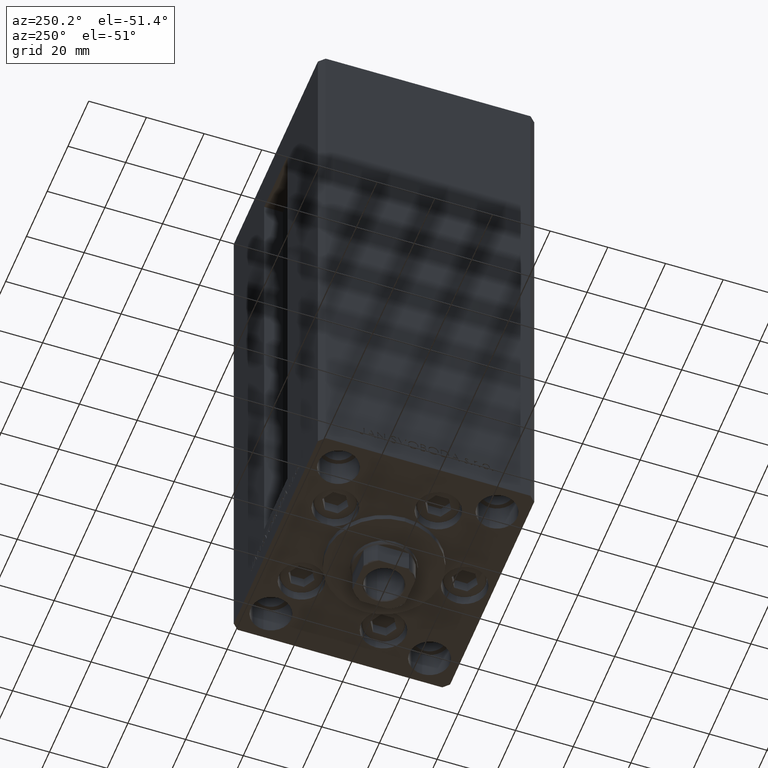
[diagram: clean part render]
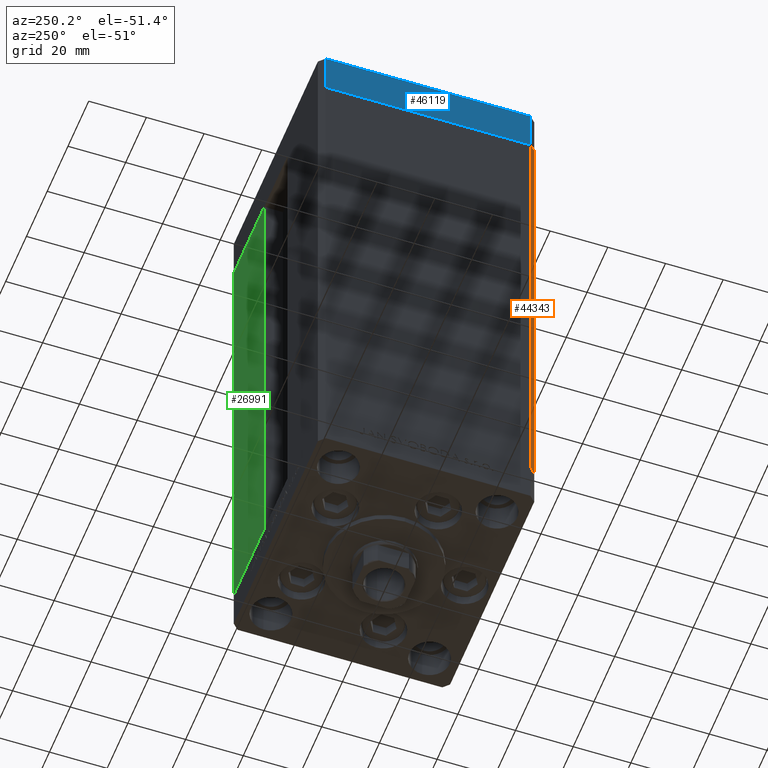
[diagram: same view with three faces highlighted in distinct colors, each labeled with its STEP entity id]
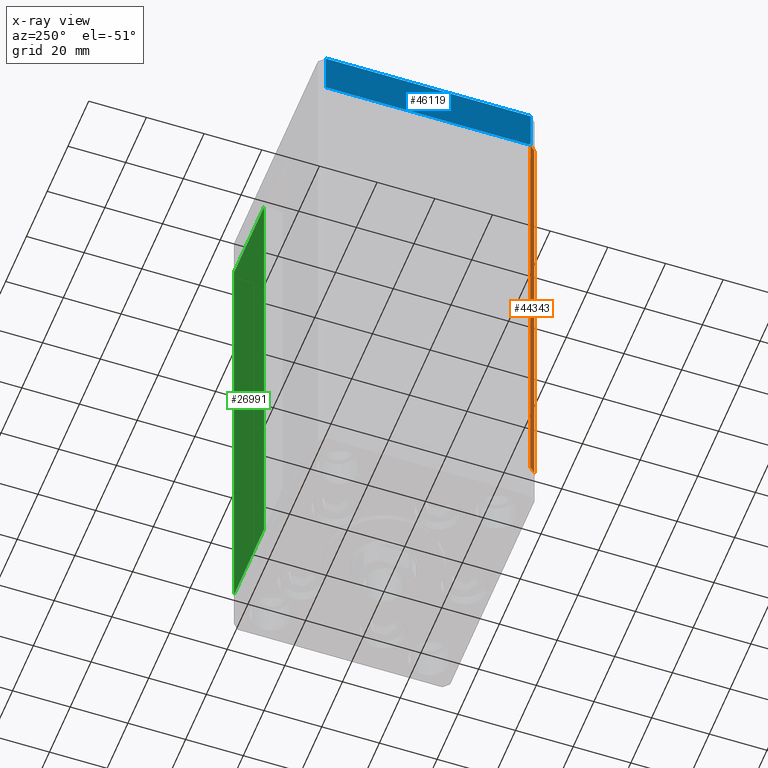
[diagram: x-ray of the same camera — body ghosted, the three highlighted faces saturated]
A machine part, auxiliary view with three faces highlighted in distinct colors.
The next image is the same camera in x-ray (body ghosted, the three faces saturated) — at least one of them is partly hidden behind the body in this view.
Their STEP definitions:

[orange] entity #44343 — the highlighted planar face has unit normal (0.7071, 0.7071, 0).
#100 = DIRECTION ( 'NONE',  ( 0.7071067811865475727, 0.7071067811865475727, -0.000000000000000000 ) ) ;
#1778 = CARTESIAN_POINT ( 'NONE',  ( -42.49999999999998579, -35.50000000000000711, 168.5000000000000000 ) ) ;
#2165 = VERTEX_POINT ( 'NONE', #17840 ) ;
#2804 = CARTESIAN_POINT ( 'NONE',  ( -42.49999999999998579, -35.50000000000000711, 168.5000000000000000 ) ) ;
#3328 = FACE_OUTER_BOUND ( 'NONE', #6690, .T. ) ;
#3898 = VERTEX_POINT ( 'NONE', #2804 ) ;
#6690 = EDGE_LOOP ( 'NONE', ( #44557, #21536, #24591, #28773 ) ) ;
#9269 = DIRECTION ( 'NONE',  ( -0.000000000000000000, -0.000000000000000000, -1.000000000000000000 ) ) ;
#9904 = VERTEX_POINT ( 'NONE', #37448 ) ;
#11997 = LINE ( 'NONE', #23684, #42934 ) ;
#12565 = DIRECTION ( 'NONE',  ( -0.000000000000000000, -0.000000000000000000, -1.000000000000000000 ) ) ;
#15575 = LINE ( 'NONE', #27264, #33162 ) ;
#15872 = VECTOR ( 'NONE', #45865, 1000.000000000000114 ) ;
#16441 = CARTESIAN_POINT ( 'NONE',  ( -42.49999999999998579, -35.50000000000000711, 168.5000000000000000 ) ) ;
#17292 = EDGE_CURVE ( 'NONE', #3898, #26285, #27166, .T. ) ;
#17840 = CARTESIAN_POINT ( 'NONE',  ( -40.49999999999998579, -37.50000000000000711, 0.000000000000000000 ) ) ;
#18531 = CARTESIAN_POINT ( 'NONE',  ( -42.49999999999998579, -35.50000000000000711, 168.5000000000000000 ) ) ;
#21536 = ORIENTED_EDGE ( 'NONE', *, *, #44007, .F. ) ;
#22774 = DIRECTION ( 'NONE',  ( -0.7071067811865474617, 0.7071067811865474617, 0.000000000000000000 ) ) ;
#23684 = CARTESIAN_POINT ( 'NONE',  ( -42.49999999999998579, -35.50000000000000711, 0.000000000000000000 ) ) ;
#24591 = ORIENTED_EDGE ( 'NONE', *, *, #17292, .F. ) ;
#26285 = VERTEX_POINT ( 'NONE', #28992 ) ;
#27166 = LINE ( 'NONE', #16441, #15872 ) ;
#27264 = CARTESIAN_POINT ( 'NONE',  ( -40.49999999999998579, -37.50000000000000711, 168.5000000000000000 ) ) ;
#27617 = AXIS2_PLACEMENT_3D ( 'NONE', #18531, #100, #22774 ) ;
#28773 = ORIENTED_EDGE ( 'NONE', *, *, #29819, .T. ) ;
#28992 = CARTESIAN_POINT ( 'NONE',  ( -40.49999999999998579, -37.50000000000000711, 168.5000000000000000 ) ) ;
#29819 = EDGE_CURVE ( 'NONE', #3898, #9904, #43399, .T. ) ;
#33162 = VECTOR ( 'NONE', #12565, 1000.000000000000000 ) ;
#33642 = VECTOR ( 'NONE', #9269, 1000.000000000000000 ) ;
#37448 = CARTESIAN_POINT ( 'NONE',  ( -42.49999999999998579, -35.50000000000000711, 0.000000000000000000 ) ) ;
#37731 = PLANE ( 'NONE',  #27617 ) ;
#42934 = VECTOR ( 'NONE', #45371, 1000.000000000000114 ) ;
#43399 = LINE ( 'NONE', #1778, #33642 ) ;
#44007 = EDGE_CURVE ( 'NONE', #26285, #2165, #15575, .T. ) ;
#44343 = ADVANCED_FACE ( 'NONE', ( #3328 ), #37731, .F. ) ;
#44557 = ORIENTED_EDGE ( 'NONE', *, *, #47878, .T. ) ;
#45371 = DIRECTION ( 'NONE',  ( 0.7071067811865474617, -0.7071067811865474617, 0.000000000000000000 ) ) ;
#45865 = DIRECTION ( 'NONE',  ( 0.7071067811865474617, -0.7071067811865474617, 0.000000000000000000 ) ) ;
#47878 = EDGE_CURVE ( 'NONE', #9904, #2165, #11997, .T. ) ;

[blue] entity #46119 — the highlighted planar face has unit normal (-1, -0, 0).
#90 = LINE ( 'NONE', #26988, #21574 ) ;
#302 = CARTESIAN_POINT ( 'NONE',  ( -42.50000000000000711, 35.49999999999997158, -15.00000000000000000 ) ) ;
#1103 = CARTESIAN_POINT ( 'NONE',  ( -42.50000000000000711, 35.49999999999997158, -15.00000000000000000 ) ) ;
#2608 = CARTESIAN_POINT ( 'NONE',  ( -42.50000000000000711, 35.49999999999997158, 0.000000000000000000 ) ) ;
#2676 = VECTOR ( 'NONE', #34118, 1000.000000000000000 ) ;
#2741 = EDGE_CURVE ( 'NONE', #13930, #17854, #90, .T. ) ;
#3149 = DIRECTION ( 'NONE',  ( -1.000000000000000000, -9.773090005503140331E-17, 0.000000000000000000 ) ) ;
#3523 = DIRECTION ( 'NONE',  ( 0.000000000000000000, 0.000000000000000000, 1.000000000000000000 ) ) ;
#3841 = VERTEX_POINT ( 'NONE', #1103 ) ;
#4200 = LINE ( 'NONE', #19408, #2676 ) ;
#8249 = VECTOR ( 'NONE', #3523, 1000.000000000000000 ) ;
#8727 = CARTESIAN_POINT ( 'NONE',  ( -42.50000000000000000, -35.50000000000000711, -15.00000000000000000 ) ) ;
#11530 = LINE ( 'NONE', #302, #8249 ) ;
#11889 = LINE ( 'NONE', #27316, #30766 ) ;
#12521 = EDGE_CURVE ( 'NONE', #3841, #27557, #4200, .T. ) ;
#12766 = CARTESIAN_POINT ( 'NONE',  ( -42.50000000000000000, -35.50000000000000711, 0.000000000000000000 ) ) ;
#13930 = VERTEX_POINT ( 'NONE', #2608 ) ;
#17854 = VERTEX_POINT ( 'NONE', #12766 ) ;
#19408 = CARTESIAN_POINT ( 'NONE',  ( -42.50000000000000711, 35.49999999999997158, -15.00000000000000000 ) ) ;
#21574 = VECTOR ( 'NONE', #26498, 1000.000000000000000 ) ;
#26498 = DIRECTION ( 'NONE',  ( 9.773090005503140331E-17, -1.000000000000000000, 0.000000000000000000 ) ) ;
#26988 = CARTESIAN_POINT ( 'NONE',  ( -42.50000000000000711, 35.49999999999997158, 0.000000000000000000 ) ) ;
#27316 = CARTESIAN_POINT ( 'NONE',  ( -42.50000000000000000, -35.50000000000000711, -15.00000000000000000 ) ) ;
#27540 = EDGE_LOOP ( 'NONE', ( #29065, #46629, #41228, #36985 ) ) ;
#27557 = VERTEX_POINT ( 'NONE', #8727 ) ;
#29065 = ORIENTED_EDGE ( 'NONE', *, *, #2741, .F. ) ;
#30766 = VECTOR ( 'NONE', #32217, 1000.000000000000000 ) ;
#32217 = DIRECTION ( 'NONE',  ( 0.000000000000000000, 0.000000000000000000, 1.000000000000000000 ) ) ;
#32714 = EDGE_CURVE ( 'NONE', #3841, #13930, #11530, .T. ) ;
#33564 = DIRECTION ( 'NONE',  ( 9.773090005503140331E-17, -1.000000000000000000, 0.000000000000000000 ) ) ;
#34118 = DIRECTION ( 'NONE',  ( 9.773090005503140331E-17, -1.000000000000000000, 0.000000000000000000 ) ) ;
#36985 = ORIENTED_EDGE ( 'NONE', *, *, #42945, .T. ) ;
#37556 = FACE_OUTER_BOUND ( 'NONE', #27540, .T. ) ;
#41228 = ORIENTED_EDGE ( 'NONE', *, *, #12521, .T. ) ;
#41294 = PLANE ( 'NONE',  #43680 ) ;
#42945 = EDGE_CURVE ( 'NONE', #27557, #17854, #11889, .T. ) ;
#43680 = AXIS2_PLACEMENT_3D ( 'NONE', #45775, #3149, #33564 ) ;
#45775 = CARTESIAN_POINT ( 'NONE',  ( -42.50000000000000711, 35.49999999999997158, -15.00000000000000000 ) ) ;
#46119 = ADVANCED_FACE ( 'NONE', ( #37556 ), #41294, .T. ) ;
#46629 = ORIENTED_EDGE ( 'NONE', *, *, #32714, .F. ) ;

[green] entity #26991 — the highlighted planar face has unit normal (-0, -1, 0).
#1031 = AXIS2_PLACEMENT_3D ( 'NONE', #30119, #26376, #22645 ) ;
#2181 = EDGE_CURVE ( 'NONE', #46184, #24716, #21322, .T. ) ;
#4134 = ORIENTED_EDGE ( 'NONE', *, *, #36492, .T. ) ;
#4507 = DIRECTION ( 'NONE',  ( -1.000000000000000000, 2.372271420139223331E-16, 0.000000000000000000 ) ) ;
#5130 = CARTESIAN_POINT ( 'NONE',  ( 11.25000000000000000, 37.50000000000000000, 0.000000000000000000 ) ) ;
#5171 = VECTOR ( 'NONE', #4507, 1000.000000000000000 ) ;
#5850 = VECTOR ( 'NONE', #12063, 1000.000000000000000 ) ;
#6431 = CARTESIAN_POINT ( 'NONE',  ( 11.24999999999999289, 37.50000000000000000, 168.5000000000000000 ) ) ;
#6530 = CARTESIAN_POINT ( 'NONE',  ( 40.50000000000000000, 37.50000000000000711, 0.000000000000000000 ) ) ;
#7699 = CARTESIAN_POINT ( 'NONE',  ( 11.25000000000000000, 37.50000000000000000, 0.000000000000000000 ) ) ;
#12063 = DIRECTION ( 'NONE',  ( 1.000000000000000000, 0.000000000000000000, 0.000000000000000000 ) ) ;
#12599 = ORIENTED_EDGE ( 'NONE', *, *, #18361, .T. ) ;
#14026 = ORIENTED_EDGE ( 'NONE', *, *, #32514, .T. ) ;
#14076 = ORIENTED_EDGE ( 'NONE', *, *, #2181, .T. ) ;
#14922 = FACE_OUTER_BOUND ( 'NONE', #19306, .T. ) ;
#18361 = EDGE_CURVE ( 'NONE', #28412, #26766, #22145, .T. ) ;
#19306 = EDGE_LOOP ( 'NONE', ( #4134, #12599, #14026, #14076 ) ) ;
#21322 = LINE ( 'NONE', #40763, #47827 ) ;
#22145 = LINE ( 'NONE', #7699, #30205 ) ;
#22645 = DIRECTION ( 'NONE',  ( 1.000000000000000000, -2.372271420139223331E-16, 0.000000000000000000 ) ) ;
#23577 = CARTESIAN_POINT ( 'NONE',  ( 40.50000000000000000, 37.50000000000000711, 168.5000000000000000 ) ) ;
#24716 = VERTEX_POINT ( 'NONE', #6530 ) ;
#26376 = DIRECTION ( 'NONE',  ( -2.372271420139223331E-16, -1.000000000000000000, 0.000000000000000000 ) ) ;
#26766 = VERTEX_POINT ( 'NONE', #6431 ) ;
#26991 = ADVANCED_FACE ( 'NONE', ( #14922 ), #40829, .F. ) ;
#28412 = VERTEX_POINT ( 'NONE', #5130 ) ;
#30119 = CARTESIAN_POINT ( 'NONE',  ( -11.25000000000000000, 37.50000000000000000, 168.5000000000000000 ) ) ;
#30205 = VECTOR ( 'NONE', #41086, 1000.000000000000000 ) ;
#32514 = EDGE_CURVE ( 'NONE', #26766, #46184, #46420, .T. ) ;
#36492 = EDGE_CURVE ( 'NONE', #24716, #28412, #46620, .T. ) ;
#38658 = CARTESIAN_POINT ( 'NONE',  ( -11.25000000000000000, 37.50000000000000000, 0.000000000000000000 ) ) ;
#40763 = CARTESIAN_POINT ( 'NONE',  ( 40.50000000000000000, 37.50000000000000711, 168.5000000000000000 ) ) ;
#40829 = PLANE ( 'NONE',  #1031 ) ;
#41086 = DIRECTION ( 'NONE',  ( -0.000000000000000000, -0.000000000000000000, 1.000000000000000000 ) ) ;
#44249 = DIRECTION ( 'NONE',  ( -0.000000000000000000, -0.000000000000000000, -1.000000000000000000 ) ) ;
#46184 = VERTEX_POINT ( 'NONE', #23577 ) ;
#46420 = LINE ( 'NONE', #46666, #5850 ) ;
#46620 = LINE ( 'NONE', #38658, #5171 ) ;
#46666 = CARTESIAN_POINT ( 'NONE',  ( -11.25000000000000000, 37.50000000000000000, 168.5000000000000000 ) ) ;
#47827 = VECTOR ( 'NONE', #44249, 1000.000000000000000 ) ;